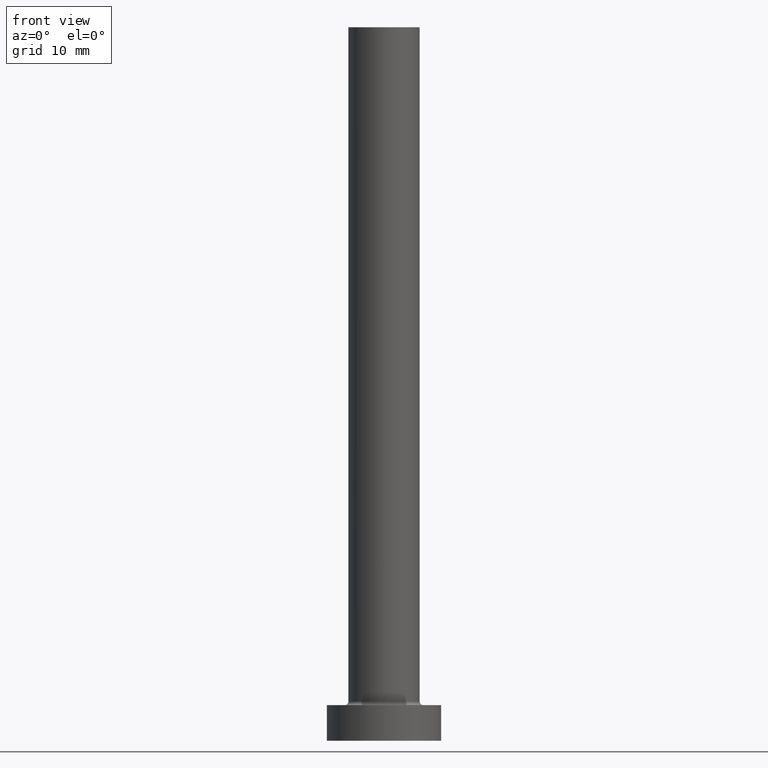
[diagram: clean part render]
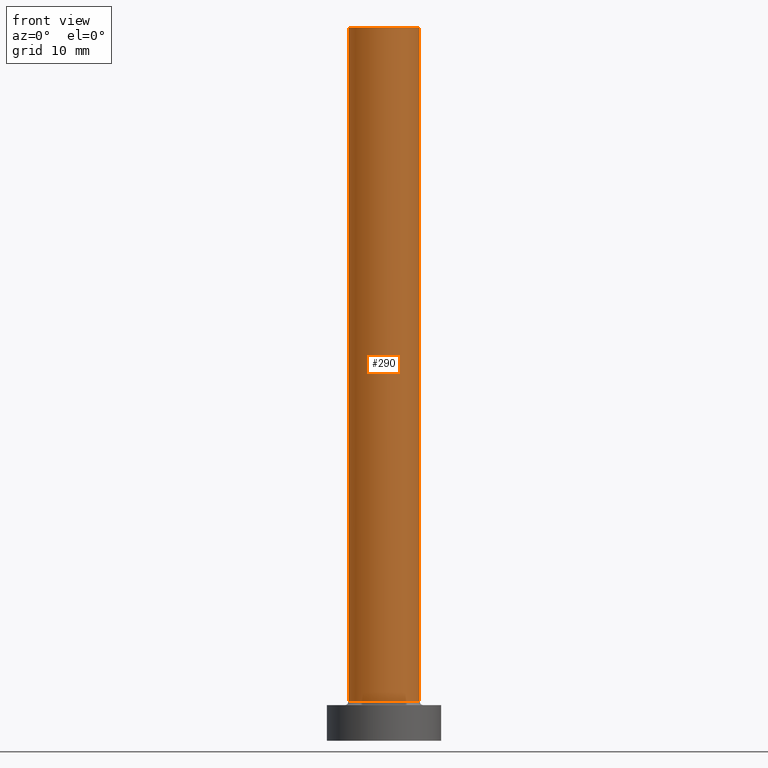
[diagram: same view with one face highlighted and labeled with its STEP entity id]
A machine part, front view. The second image highlights one B-rep face of the part: STEP entity #290.
In plain terms, the highlighted cylindrical surface (edge-blend (fillet) strip) has radius 5 mm, axis along (-0, -0, -1).
Its self-contained STEP definition (entity closure, byte-faithful):
#12 = ORIENTED_EDGE ( 'NONE', *, *, #254, .F. ) ;
#25 = CARTESIAN_POINT ( 'NONE',  ( -5.000000000000000000, 0.000000000000000000, 100.0000000000000000 ) ) ;
#58 = CARTESIAN_POINT ( 'NONE',  ( 5.000000000000000000, 6.123233995736766282E-16, 100.0000000000000000 ) ) ;
#87 = CARTESIAN_POINT ( 'NONE',  ( 0.000000000000000000, 0.000000000000000000, 5.500000000000005329 ) ) ;
#93 = CARTESIAN_POINT ( 'NONE',  ( 5.000000000000000000, 6.123233995736766282E-16, 100.0000000000000000 ) ) ;
#96 = ORIENTED_EDGE ( 'NONE', *, *, #391, .T. ) ;
#98 = CARTESIAN_POINT ( 'NONE',  ( 0.000000000000000000, 0.000000000000000000, 100.0000000000000000 ) ) ;
#104 = LINE ( 'NONE', #394, #341 ) ;
#112 = EDGE_CURVE ( 'NONE', #358, #345, #145, .T. ) ;
#133 = ORIENTED_EDGE ( 'NONE', *, *, #112, .T. ) ;
#145 = CIRCLE ( 'NONE', #216, 5.000000000000000000 ) ;
#153 = DIRECTION ( 'NONE',  ( 1.000000000000000000, 0.000000000000000000, 0.000000000000000000 ) ) ;
#154 = CIRCLE ( 'NONE', #330, 5.000000000000000000 ) ;
#164 = DIRECTION ( 'NONE',  ( -0.000000000000000000, -0.000000000000000000, -1.000000000000000000 ) ) ;
#168 = AXIS2_PLACEMENT_3D ( 'NONE', #378, #164, #416 ) ;
#169 = DIRECTION ( 'NONE',  ( -0.000000000000000000, -0.000000000000000000, -1.000000000000000000 ) ) ;
#171 = CARTESIAN_POINT ( 'NONE',  ( 5.000000000000000000, 6.123233995736766282E-16, 5.500000000000005329 ) ) ;
#182 = ORIENTED_EDGE ( 'NONE', *, *, #252, .F. ) ;
#216 = AXIS2_PLACEMENT_3D ( 'NONE', #87, #329, #153 ) ;
#230 = DIRECTION ( 'NONE',  ( 0.000000000000000000, 0.000000000000000000, 1.000000000000000000 ) ) ;
#234 = DIRECTION ( 'NONE',  ( 1.000000000000000000, 0.000000000000000000, 0.000000000000000000 ) ) ;
#252 = EDGE_CURVE ( 'NONE', #273, #345, #272, .T. ) ;
#254 = EDGE_CURVE ( 'NONE', #340, #273, #154, .T. ) ;
#272 = LINE ( 'NONE', #93, #363 ) ;
#273 = VERTEX_POINT ( 'NONE', #58 ) ;
#290 = ADVANCED_FACE ( 'NONE', ( #335 ), #457, .T. ) ;
#329 = DIRECTION ( 'NONE',  ( 0.000000000000000000, 0.000000000000000000, 1.000000000000000000 ) ) ;
#330 = AXIS2_PLACEMENT_3D ( 'NONE', #98, #230, #234 ) ;
#335 = FACE_OUTER_BOUND ( 'NONE', #415, .T. ) ;
#340 = VERTEX_POINT ( 'NONE', #25 ) ;
#341 = VECTOR ( 'NONE', #422, 1000.000000000000000 ) ;
#345 = VERTEX_POINT ( 'NONE', #171 ) ;
#358 = VERTEX_POINT ( 'NONE', #381 ) ;
#363 = VECTOR ( 'NONE', #169, 1000.000000000000000 ) ;
#378 = CARTESIAN_POINT ( 'NONE',  ( 0.000000000000000000, 0.000000000000000000, 100.0000000000000000 ) ) ;
#381 = CARTESIAN_POINT ( 'NONE',  ( -5.000000000000000000, 0.000000000000000000, 5.500000000000005329 ) ) ;
#391 = EDGE_CURVE ( 'NONE', #340, #358, #104, .T. ) ;
#394 = CARTESIAN_POINT ( 'NONE',  ( -5.000000000000000000, 0.000000000000000000, 100.0000000000000000 ) ) ;
#415 = EDGE_LOOP ( 'NONE', ( #182, #12, #96, #133 ) ) ;
#416 = DIRECTION ( 'NONE',  ( -1.000000000000000000, 0.000000000000000000, 0.000000000000000000 ) ) ;
#422 = DIRECTION ( 'NONE',  ( -0.000000000000000000, -0.000000000000000000, -1.000000000000000000 ) ) ;
#457 = CYLINDRICAL_SURFACE ( 'NONE', #168, 5.000000000000000000 ) ;